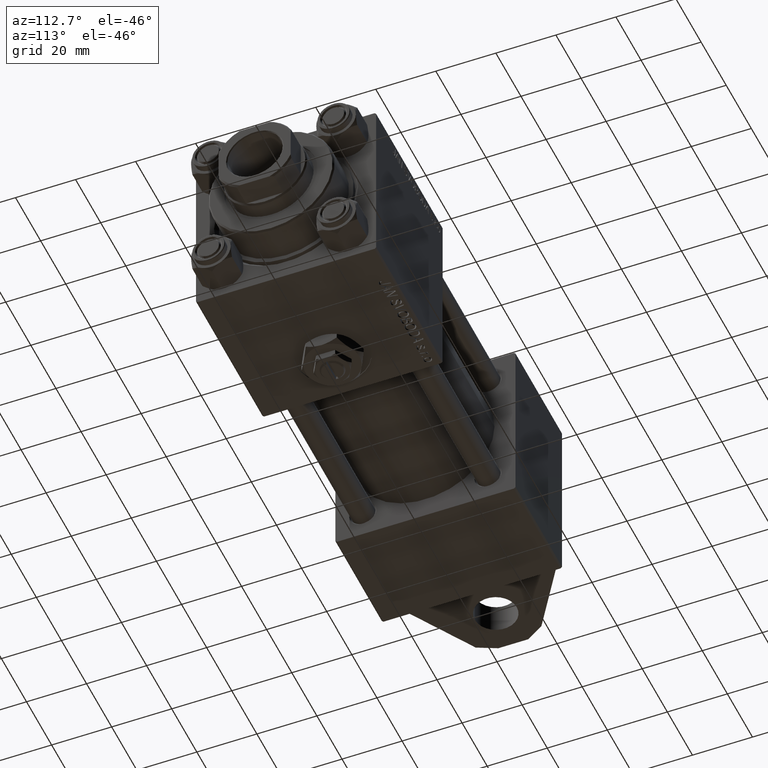
[diagram: clean part render]
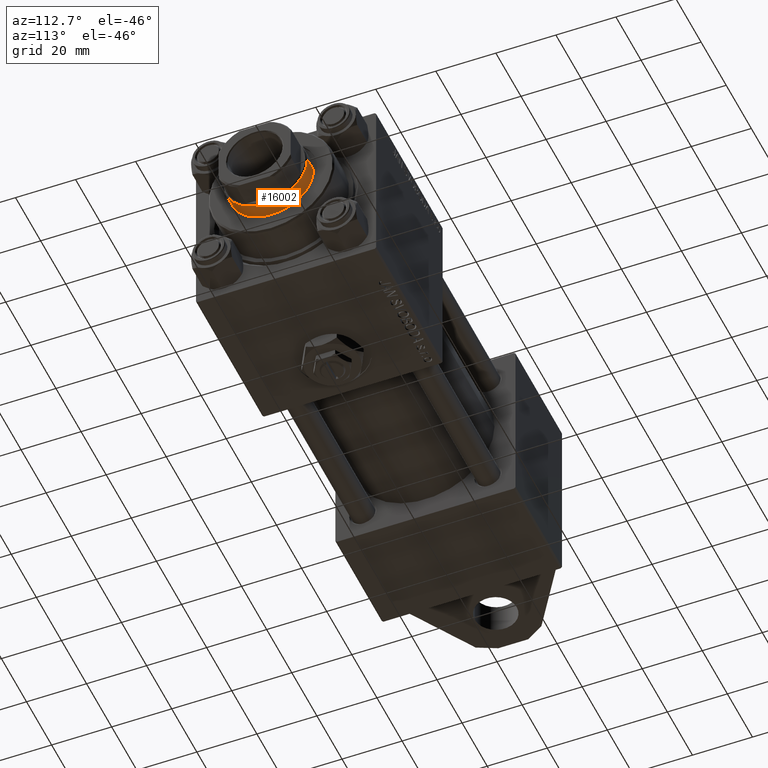
[diagram: same view with one face highlighted and labeled with its STEP entity id]
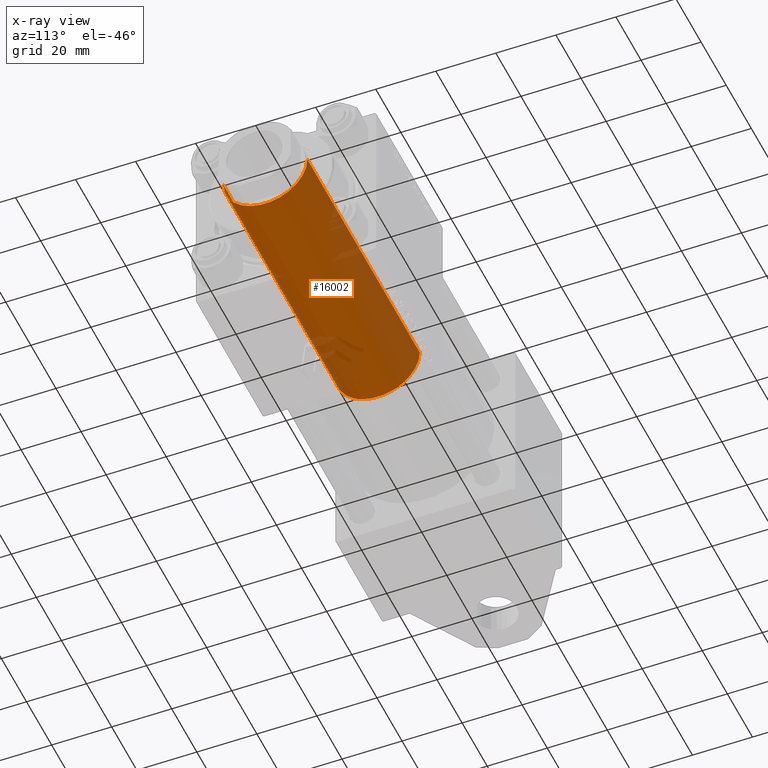
[diagram: x-ray of the same camera — body ghosted, the highlighted face saturated]
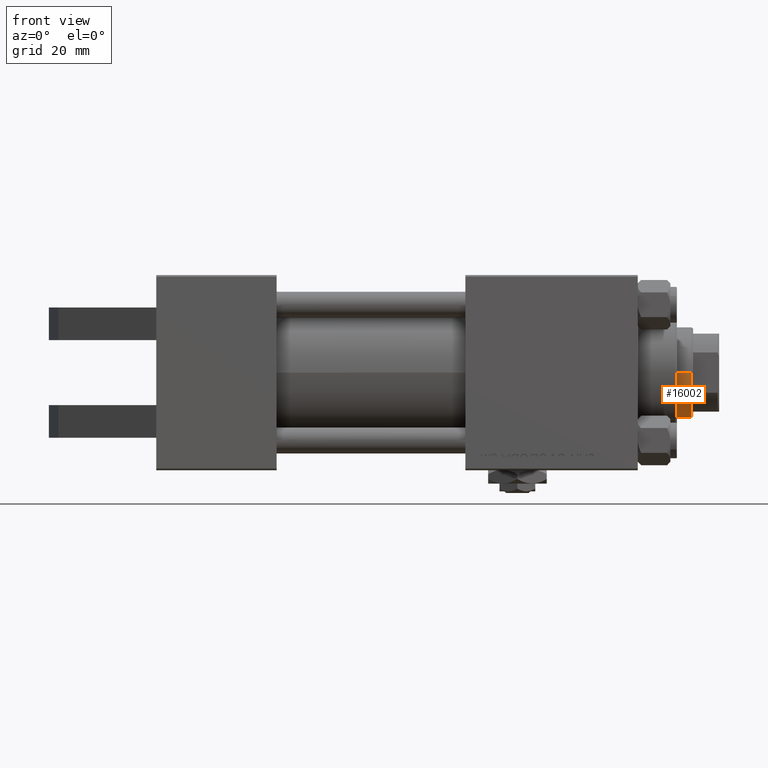
[diagram: same view with one face highlighted and labeled with its STEP entity id]
A machine part, auxiliary view. The second image highlights one B-rep face of the part: STEP entity #16002.
The next image is the same camera in x-ray: the body ghosted, the highlighted face saturated — about 37% of this face is hidden behind the body in this view.
A second angle (front view) of the same face is appended — the face is thin or edge-on in the first view.
In plain terms, the highlighted cylindrical surface (partial cylindrical patch) has radius 14 mm, axis along (-1, 0, 0).
Its self-contained STEP definition (entity closure, byte-faithful):
#788 = DIRECTION ( 'NONE',  ( -0.000000000000000000, -0.000000000000000000, -1.000000000000000000 ) ) ;
#3582 = DIRECTION ( 'NONE',  ( -0.000000000000000000, -0.000000000000000000, -1.000000000000000000 ) ) ;
#4709 = VECTOR ( 'NONE', #3582, 1000.000000000000000 ) ;
#7488 = ORIENTED_EDGE ( 'NONE', *, *, #37543, .F. ) ;
#9735 = CARTESIAN_POINT ( 'NONE',  ( 0.000000000000000000, 0.000000000000000000, 38.00000000000000000 ) ) ;
#10905 = DIRECTION ( 'NONE',  ( 0.000000000000000000, 0.000000000000000000, -1.000000000000000000 ) ) ;
#12263 = FACE_OUTER_BOUND ( 'NONE', #36642, .T. ) ;
#13282 = CARTESIAN_POINT ( 'NONE',  ( 0.000000000000000000, 0.000000000000000000, 128.0000000000000000 ) ) ;
#15300 = DIRECTION ( 'NONE',  ( 1.000000000000000000, 0.000000000000000000, 0.000000000000000000 ) ) ;
#15455 = VERTEX_POINT ( 'NONE', #38165 ) ;
#16002 = ADVANCED_FACE ( 'NONE', ( #12263 ), #36464, .T. ) ;
#17049 = ORIENTED_EDGE ( 'NONE', *, *, #26209, .T. ) ;
#19714 = CARTESIAN_POINT ( 'NONE',  ( 14.00000000000000178, 1.714505518806294441E-15, 128.0000000000000000 ) ) ;
#20357 = EDGE_CURVE ( 'NONE', #32940, #48167, #20986, .T. ) ;
#20986 = CIRCLE ( 'NONE', #50908, 14.00000000000000178 ) ;
#23743 = CARTESIAN_POINT ( 'NONE',  ( -14.00000000000000178, 0.000000000000000000, 128.0000000000000000 ) ) ;
#24225 = DIRECTION ( 'NONE',  ( -1.000000000000000000, 0.000000000000000000, 0.000000000000000000 ) ) ;
#26209 = EDGE_CURVE ( 'NONE', #15455, #50835, #38627, .T. ) ;
#28845 = ORIENTED_EDGE ( 'NONE', *, *, #34106, .T. ) ;
#29776 = DIRECTION ( 'NONE',  ( 1.000000000000000000, 0.000000000000000000, 0.000000000000000000 ) ) ;
#30224 = ORIENTED_EDGE ( 'NONE', *, *, #20357, .T. ) ;
#31027 = LINE ( 'NONE', #23743, #35612 ) ;
#32940 = VERTEX_POINT ( 'NONE', #44520 ) ;
#33664 = AXIS2_PLACEMENT_3D ( 'NONE', #42387, #10905, #15300 ) ;
#34106 = EDGE_CURVE ( 'NONE', #50835, #32940, #38456, .T. ) ;
#35612 = VECTOR ( 'NONE', #35981, 1000.000000000000000 ) ;
#35613 = CARTESIAN_POINT ( 'NONE',  ( -14.00000000000000178, 0.000000000000000000, 38.00000000000000000 ) ) ;
#35981 = DIRECTION ( 'NONE',  ( -0.000000000000000000, -0.000000000000000000, -1.000000000000000000 ) ) ;
#36464 = CYLINDRICAL_SURFACE ( 'NONE', #38929, 14.00000000000000178 ) ;
#36642 = EDGE_LOOP ( 'NONE', ( #17049, #28845, #30224, #7488 ) ) ;
#37543 = EDGE_CURVE ( 'NONE', #15455, #48167, #31027, .T. ) ;
#37566 = DIRECTION ( 'NONE',  ( 0.000000000000000000, 0.000000000000000000, 1.000000000000000000 ) ) ;
#38165 = CARTESIAN_POINT ( 'NONE',  ( -14.00000000000000178, 0.000000000000000000, 127.5000000000000853 ) ) ;
#38456 = LINE ( 'NONE', #19714, #4709 ) ;
#38627 = CIRCLE ( 'NONE', #33664, 14.00000000000000178 ) ;
#38929 = AXIS2_PLACEMENT_3D ( 'NONE', #13282, #788, #24225 ) ;
#42387 = CARTESIAN_POINT ( 'NONE',  ( 0.000000000000000000, 0.000000000000000000, 127.5000000000000853 ) ) ;
#44520 = CARTESIAN_POINT ( 'NONE',  ( 14.00000000000000178, 1.714505518806294441E-15, 38.00000000000000000 ) ) ;
#45542 = CARTESIAN_POINT ( 'NONE',  ( 14.00000000000000178, 1.714505518806294441E-15, 127.5000000000000853 ) ) ;
#48167 = VERTEX_POINT ( 'NONE', #35613 ) ;
#50835 = VERTEX_POINT ( 'NONE', #45542 ) ;
#50908 = AXIS2_PLACEMENT_3D ( 'NONE', #9735, #37566, #29776 ) ;